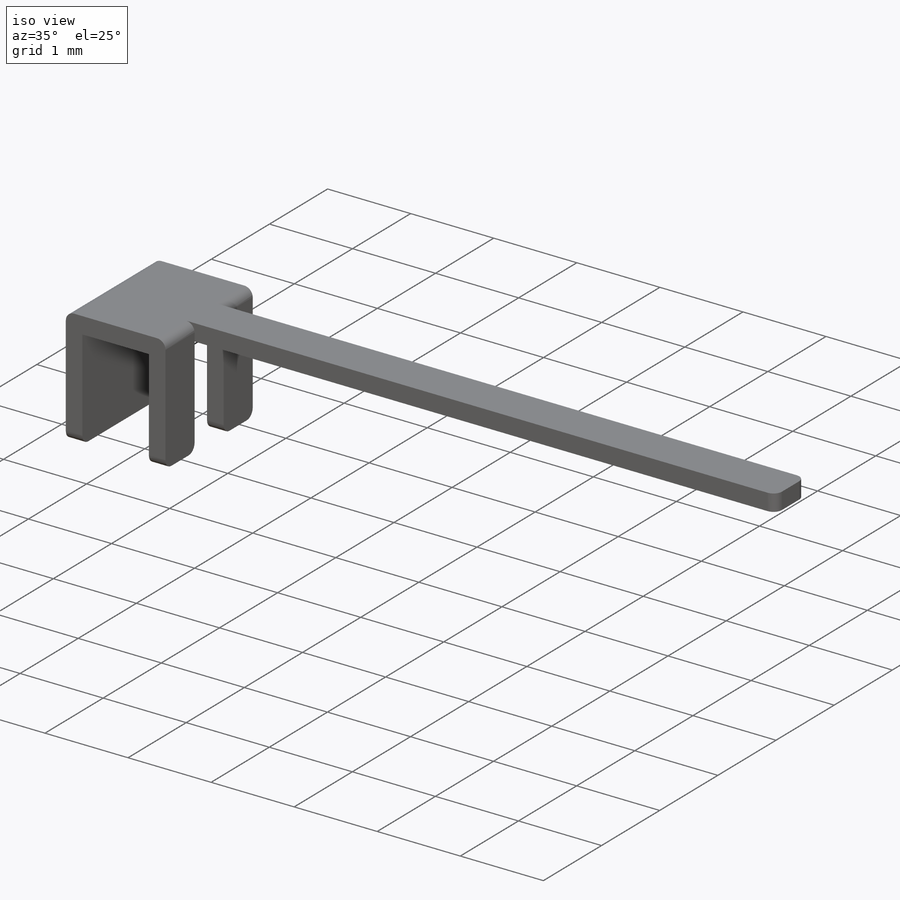
[diagram: iso view]
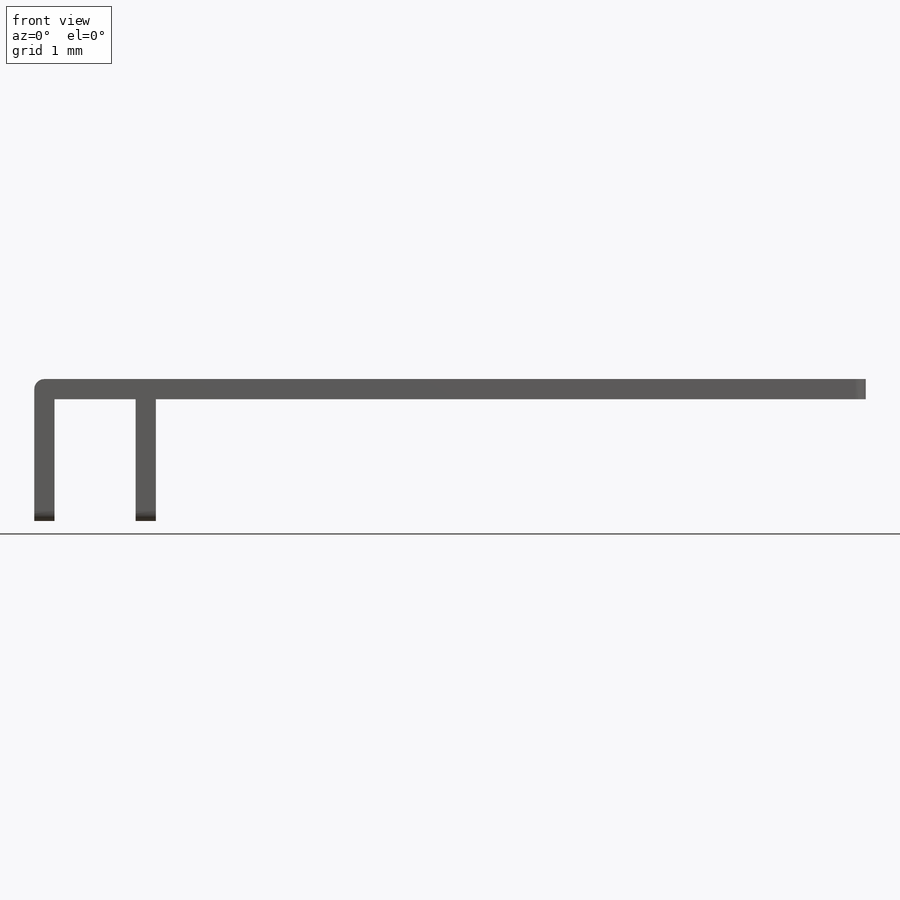
[diagram: front view]
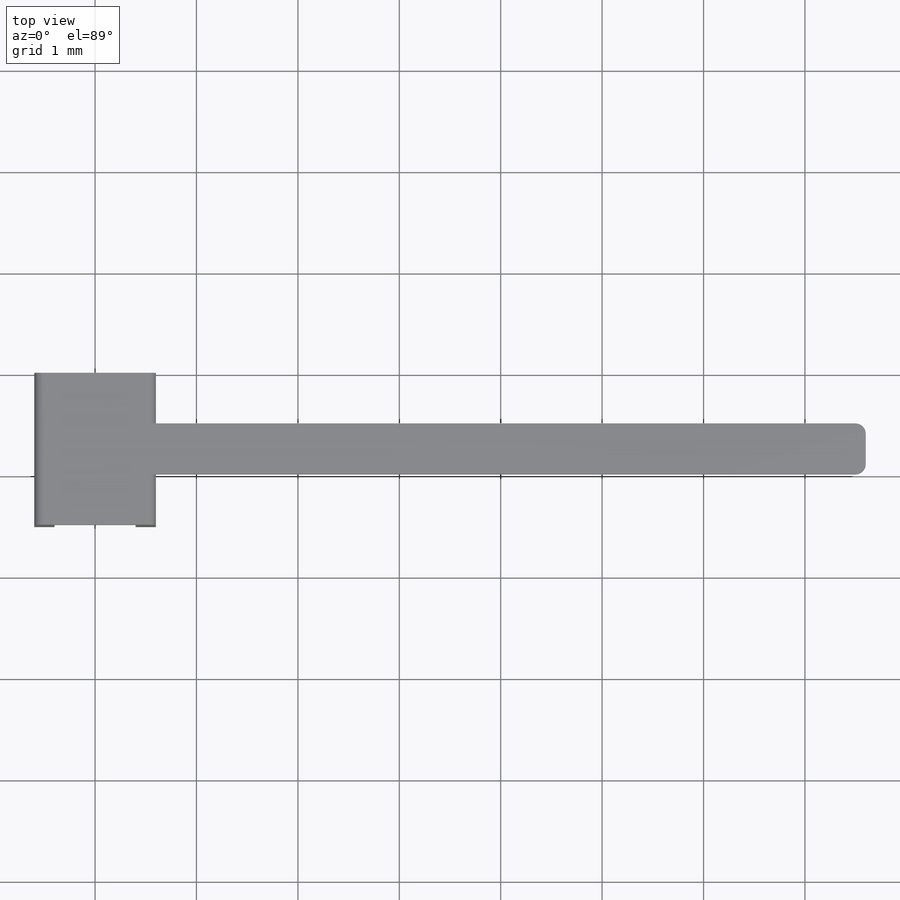
[diagram: top view]
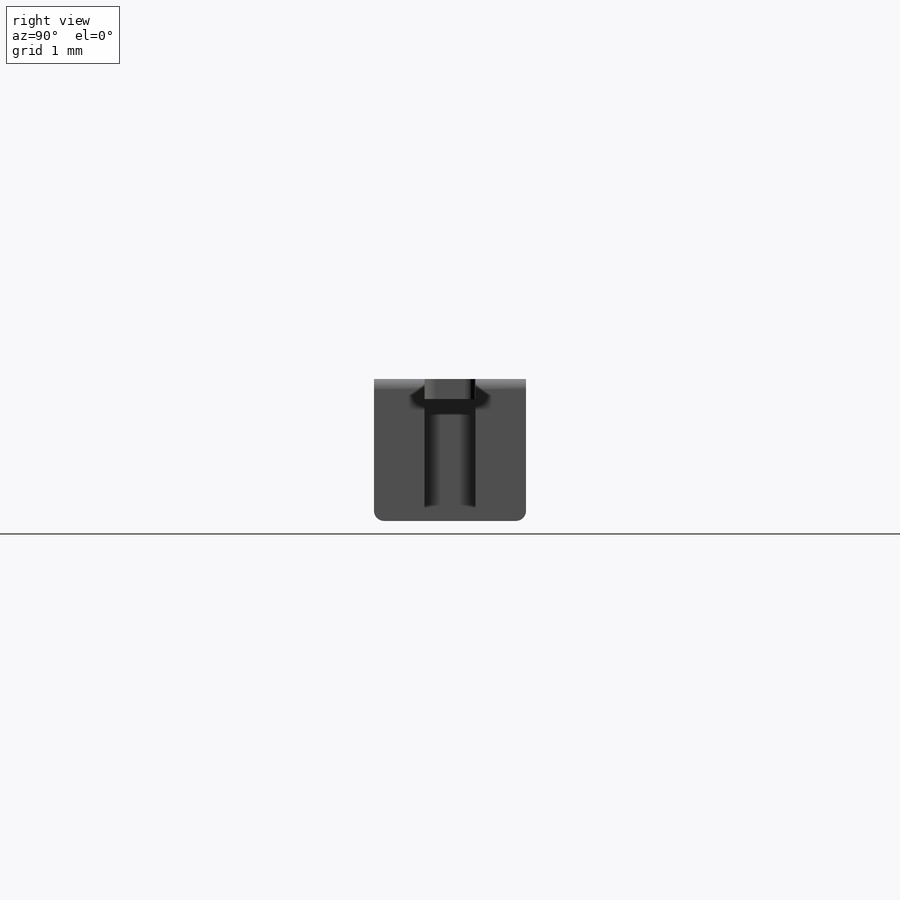
[diagram: right view]
SOLIDWORKS PART (.sldprt)
format: sldprt  version: not decoded by parser v0  size: 188,928 bytes
history: native  units: mm
features: sketch x3, extrude x2, material x1, cut_extrude x1, fillet x1 (+13 scaffold rows collapsed)
feature tree (21):
  scaffold x13  (default folders/planes/origin — collapsed)
  material  "Material <not specified>"
  sketch  "Sketch1"  dims[D4=0.1mm D6=0.2mm D1=1.2mm D2=0.8mm D7=0.1mm D3=0.2mm D5=0.1mm]
  extrude  "Boss-Extrude1"  Depth=1.5mm
  sketch  "Sketch5"  dims[D1=7.0mm]
  extrude  "Boss-Extrude3"  Depth=0.5mm
  sketch  "Sketch6"
  cut_extrude  "Cut-Extrude2"  Depth=0.5mm
  fillet  "Fillet2"  Radius=0.1mm
decode coverage: 6 of 7 modeling features carry decoded parameters
note: suppression state not decoded; provenance and decode notes live in map.json
